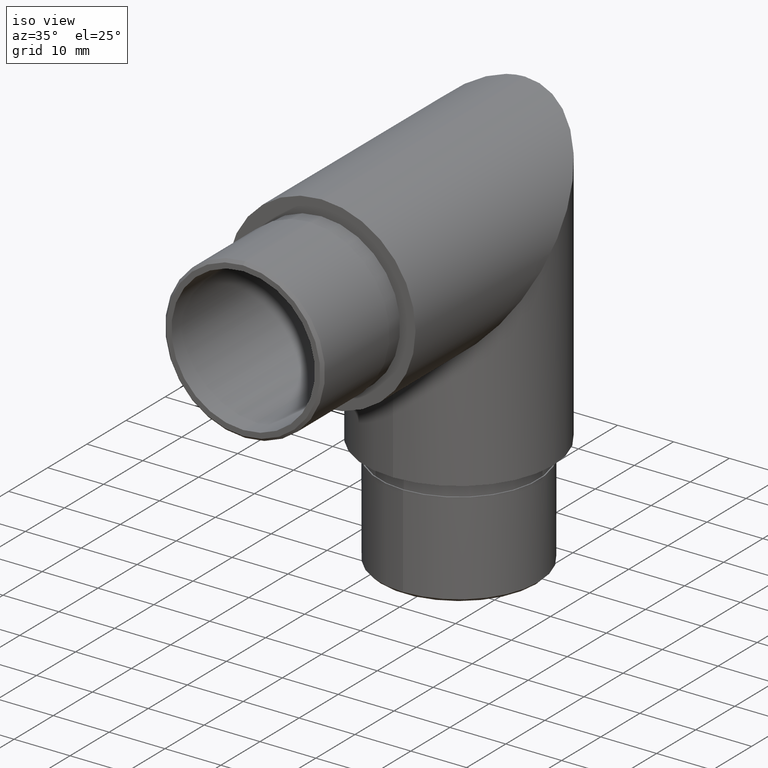
[diagram: clean part render]
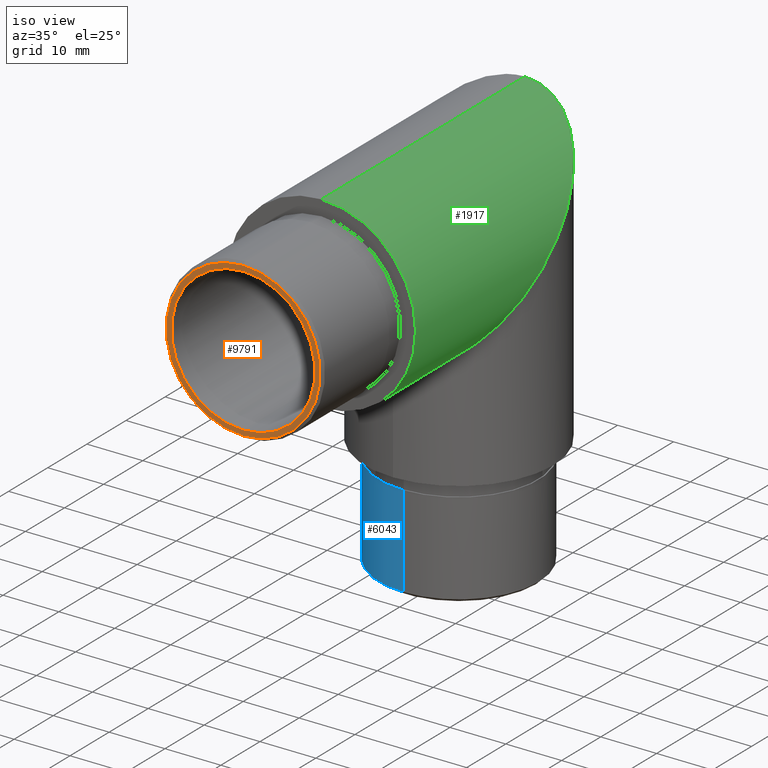
[diagram: same view with three faces highlighted in distinct colors, each labeled with its STEP entity id]
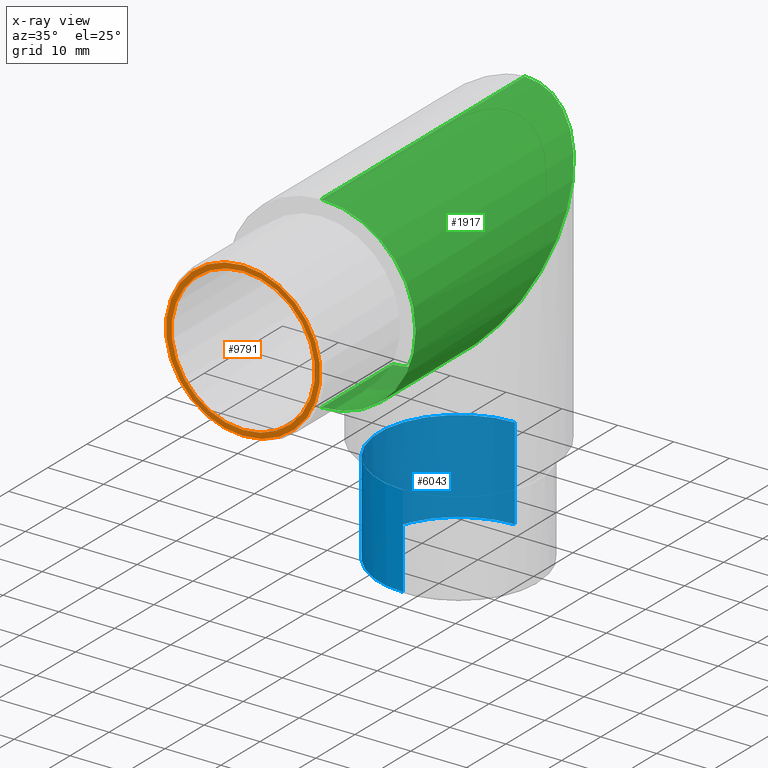
[diagram: x-ray of the same camera — body ghosted, the three highlighted faces saturated]
A machine part, iso view with three faces highlighted in distinct colors.
The next image is the same camera in x-ray (body ghosted, the three faces saturated) — at least one of them is partly hidden behind the body in this view.
Their STEP definitions:

[orange] entity #9791 — the highlighted planar face has unit normal (0, -1, 0).
#79 = DIRECTION ( 'NONE',  ( 0.000000000000000000, -1.000000000000000000, 0.000000000000000000 ) ) ;
#101 = EDGE_LOOP ( 'NONE', ( #3277, #6915 ) ) ;
#411 = CARTESIAN_POINT ( 'NONE',  ( 1.573671136904348863E-15, -20.00000000000000000, 12.84999999999999964 ) ) ;
#648 = AXIS2_PLACEMENT_3D ( 'NONE', #7117, #10134, #1250 ) ;
#1250 = DIRECTION ( 'NONE',  ( 0.000000000000000000, 0.000000000000000000, -1.000000000000000000 ) ) ;
#1357 = EDGE_CURVE ( 'NONE', #4787, #11653, #10066, .T. ) ;
#1812 = FACE_OUTER_BOUND ( 'NONE', #101, .T. ) ;
#2077 = CARTESIAN_POINT ( 'NONE',  ( 0.000000000000000000, -20.00000000000000000, 0.000000000000000000 ) ) ;
#2520 = DIRECTION ( 'NONE',  ( 0.000000000000000000, -1.000000000000000000, 0.000000000000000000 ) ) ;
#3277 = ORIENTED_EDGE ( 'NONE', *, *, #9010, .T. ) ;
#3681 = DIRECTION ( 'NONE',  ( 0.000000000000000000, -1.000000000000000000, 0.000000000000000000 ) ) ;
#3809 = DIRECTION ( 'NONE',  ( 0.000000000000000000, 0.000000000000000000, -1.000000000000000000 ) ) ;
#3971 = AXIS2_PLACEMENT_3D ( 'NONE', #9697, #9773, #3809 ) ;
#4787 = VERTEX_POINT ( 'NONE', #11420 ) ;
#6366 = VERTEX_POINT ( 'NONE', #11032 ) ;
#6644 = DIRECTION ( 'NONE',  ( 0.000000000000000000, 0.000000000000000000, -1.000000000000000000 ) ) ;
#6735 = EDGE_CURVE ( 'NONE', #10302, #6366, #9640, .T. ) ;
#6876 = AXIS2_PLACEMENT_3D ( 'NONE', #8368, #2520, #10278 ) ;
#6915 = ORIENTED_EDGE ( 'NONE', *, *, #1357, .T. ) ;
#6933 = PLANE ( 'NONE',  #11029 ) ;
#7117 = CARTESIAN_POINT ( 'NONE',  ( 0.000000000000000000, -20.00000000000000000, 0.000000000000000000 ) ) ;
#7750 = CIRCLE ( 'NONE', #10623, 12.84999999999999964 ) ;
#7872 = CARTESIAN_POINT ( 'NONE',  ( 0.000000000000000000, -20.00000000000000000, 13.79999999999999361 ) ) ;
#8368 = CARTESIAN_POINT ( 'NONE',  ( 0.000000000000000000, -20.00000000000000000, 0.000000000000000000 ) ) ;
#9010 = EDGE_CURVE ( 'NONE', #11653, #4787, #10985, .T. ) ;
#9640 = CIRCLE ( 'NONE', #6876, 12.84999999999999964 ) ;
#9697 = CARTESIAN_POINT ( 'NONE',  ( 0.000000000000000000, -20.00000000000000000, 0.000000000000000000 ) ) ;
#9746 = FACE_BOUND ( 'NONE', #9996, .T. ) ;
#9773 = DIRECTION ( 'NONE',  ( 0.000000000000000000, -1.000000000000000000, 0.000000000000000000 ) ) ;
#9791 = ADVANCED_FACE ( 'NONE', ( #1812, #9746 ), #6933, .T. ) ;
#9996 = EDGE_LOOP ( 'NONE', ( #10569, #11302 ) ) ;
#10066 = CIRCLE ( 'NONE', #3971, 13.79999999999999361 ) ;
#10134 = DIRECTION ( 'NONE',  ( 0.000000000000000000, -1.000000000000000000, 0.000000000000000000 ) ) ;
#10278 = DIRECTION ( 'NONE',  ( 0.000000000000000000, 0.000000000000000000, -1.000000000000000000 ) ) ;
#10302 = VERTEX_POINT ( 'NONE', #411 ) ;
#10569 = ORIENTED_EDGE ( 'NONE', *, *, #10805, .F. ) ;
#10623 = AXIS2_PLACEMENT_3D ( 'NONE', #12571, #3681, #6644 ) ;
#10805 = EDGE_CURVE ( 'NONE', #6366, #10302, #7750, .T. ) ;
#10985 = CIRCLE ( 'NONE', #648, 13.79999999999999361 ) ;
#11029 = AXIS2_PLACEMENT_3D ( 'NONE', #2077, #79, #11924 ) ;
#11032 = CARTESIAN_POINT ( 'NONE',  ( 0.000000000000000000, -20.00000000000000000, -12.84999999999999964 ) ) ;
#11302 = ORIENTED_EDGE ( 'NONE', *, *, #6735, .F. ) ;
#11420 = CARTESIAN_POINT ( 'NONE',  ( 1.720628752802030725E-15, -20.00000000000000000, -13.79999999999999361 ) ) ;
#11653 = VERTEX_POINT ( 'NONE', #7872 ) ;
#11924 = DIRECTION ( 'NONE',  ( 0.000000000000000000, -0.000000000000000000, -1.000000000000000000 ) ) ;
#12571 = CARTESIAN_POINT ( 'NONE',  ( 0.000000000000000000, -20.00000000000000000, 0.000000000000000000 ) ) ;

[blue] entity #6043 — the highlighted cylindrical surface (partial cylindrical patch) has radius 14.3 mm, axis along (-0, 0, 1).
#856 = ORIENTED_EDGE ( 'NONE', *, *, #5033, .T. ) ;
#880 = CIRCLE ( 'NONE', #5290, 14.30000000000000071 ) ;
#947 = EDGE_CURVE ( 'NONE', #10216, #11360, #9022, .T. ) ;
#1316 = LINE ( 'NONE', #10723, #9736 ) ;
#1544 = FACE_OUTER_BOUND ( 'NONE', #8375, .T. ) ;
#1769 = VERTEX_POINT ( 'NONE', #11485 ) ;
#1863 = CIRCLE ( 'NONE', #5042, 14.30000000000000071 ) ;
#1871 = CARTESIAN_POINT ( 'NONE',  ( 1.751244922780715104E-15, 49.44999999999981810, -54.64999999999999147 ) ) ;
#2162 = DIRECTION ( 'NONE',  ( -0.000000000000000000, 3.386180225106727843E-15, 1.000000000000000000 ) ) ;
#2923 = CARTESIAN_POINT ( 'NONE',  ( 1.751244922780718653E-15, 49.44999999999987494, -38.15000000000005542 ) ) ;
#2979 = AXIS2_PLACEMENT_3D ( 'NONE', #5474, #3606, #11464 ) ;
#3295 = DIRECTION ( 'NONE',  ( 0.000000000000000000, 0.000000000000000000, 1.000000000000000000 ) ) ;
#3606 = DIRECTION ( 'NONE',  ( 0.000000000000000000, -3.386180225106727448E-15, -1.000000000000000000 ) ) ;
#4750 = CYLINDRICAL_SURFACE ( 'NONE', #8356, 14.30000000000000071 ) ;
#4812 = DIRECTION ( 'NONE',  ( -1.000000000000000000, 9.704746718751368843E-16, 0.000000000000000000 ) ) ;
#5033 = EDGE_CURVE ( 'NONE', #1769, #10216, #8445, .T. ) ;
#5042 = AXIS2_PLACEMENT_3D ( 'NONE', #6639, #8550, #4812 ) ;
#5254 = VERTEX_POINT ( 'NONE', #7374 ) ;
#5290 = AXIS2_PLACEMENT_3D ( 'NONE', #6248, #3295, #12034 ) ;
#5474 = CARTESIAN_POINT ( 'NONE',  ( 0.000000000000000000, 35.14999999999987779, -38.15000000000000568 ) ) ;
#5807 = EDGE_CURVE ( 'NONE', #10088, #5254, #1863, .T. ) ;
#6043 = ADVANCED_FACE ( 'NONE', ( #1544 ), #4750, .T. ) ;
#6084 = ORIENTED_EDGE ( 'NONE', *, *, #10904, .F. ) ;
#6183 = ORIENTED_EDGE ( 'NONE', *, *, #5807, .T. ) ;
#6248 = CARTESIAN_POINT ( 'NONE',  ( 0.000000000000000000, 35.14999999999982094, -54.64999999999999147 ) ) ;
#6639 = CARTESIAN_POINT ( 'NONE',  ( 0.000000000000000000, 35.14999999999982094, -54.64999999999999147 ) ) ;
#6785 = ORIENTED_EDGE ( 'NONE', *, *, #947, .T. ) ;
#6890 = DIRECTION ( 'NONE',  ( -0.000000000000000000, 3.386180225106727843E-15, 1.000000000000000000 ) ) ;
#7374 = CARTESIAN_POINT ( 'NONE',  ( -14.30000000000000071, 35.14999999999982094, -54.64999999999999147 ) ) ;
#7391 = DIRECTION ( 'NONE',  ( -0.000000000000000000, 3.386180225106727843E-15, 1.000000000000000000 ) ) ;
#8319 = ORIENTED_EDGE ( 'NONE', *, *, #11691, .T. ) ;
#8356 = AXIS2_PLACEMENT_3D ( 'NONE', #11877, #2162, #9040 ) ;
#8375 = EDGE_LOOP ( 'NONE', ( #6084, #6183, #8319, #856, #6785 ) ) ;
#8445 = LINE ( 'NONE', #9405, #12125 ) ;
#8550 = DIRECTION ( 'NONE',  ( 0.000000000000000000, 0.000000000000000000, 1.000000000000000000 ) ) ;
#9022 = CIRCLE ( 'NONE', #2979, 14.30000000000000071 ) ;
#9040 = DIRECTION ( 'NONE',  ( 0.000000000000000000, -1.000000000000000000, 3.396661351562978799E-15 ) ) ;
#9405 = CARTESIAN_POINT ( 'NONE',  ( 0.000000000000000000, 20.84999999999982023, -55.14999999999995595 ) ) ;
#9682 = CARTESIAN_POINT ( 'NONE',  ( 0.000000000000000000, 20.84999999999987708, -38.14999999999995595 ) ) ;
#9736 = VECTOR ( 'NONE', #6890, 1000.000000000000000 ) ;
#10088 = VERTEX_POINT ( 'NONE', #1871 ) ;
#10216 = VERTEX_POINT ( 'NONE', #9682 ) ;
#10723 = CARTESIAN_POINT ( 'NONE',  ( 1.751244922780715104E-15, 49.44999999999981810, -55.15000000000005542 ) ) ;
#10904 = EDGE_CURVE ( 'NONE', #10088, #11360, #1316, .T. ) ;
#11360 = VERTEX_POINT ( 'NONE', #2923 ) ;
#11464 = DIRECTION ( 'NONE',  ( 0.000000000000000000, 1.000000000000000000, -3.396661351562978799E-15 ) ) ;
#11485 = CARTESIAN_POINT ( 'NONE',  ( 0.000000000000000000, 20.84999999999982023, -54.64999999999999147 ) ) ;
#11691 = EDGE_CURVE ( 'NONE', #5254, #1769, #880, .T. ) ;
#11877 = CARTESIAN_POINT ( 'NONE',  ( 0.000000000000000000, 35.14999999999982094, -55.15000000000000568 ) ) ;
#12034 = DIRECTION ( 'NONE',  ( -1.000000000000000000, 0.000000000000000000, 0.000000000000000000 ) ) ;
#12125 = VECTOR ( 'NONE', #7391, 1000.000000000000000 ) ;

[green] entity #1917 — the highlighted cylindrical surface (partial cylindrical patch) has radius 16.85 mm, axis along (-0, -1, -0).
#654 = DIRECTION ( 'NONE',  ( -0.000000000000000000, -1.000000000000000000, -0.000000000000000000 ) ) ;
#756 = LINE ( 'NONE', #10466, #5154 ) ;
#1709 = CARTESIAN_POINT ( 'NONE',  ( 2.063529856563290244E-15, 18.29999999999995097, -16.85000000000000142 ) ) ;
#1917 = ADVANCED_FACE ( 'NONE', ( #5962 ), #3970, .T. ) ;
#2171 = DIRECTION ( 'NONE',  ( -0.000000000000000000, -1.000000000000000000, -0.000000000000000000 ) ) ;
#2615 = VERTEX_POINT ( 'NONE', #11699 ) ;
#2722 = ORIENTED_EDGE ( 'NONE', *, *, #8582, .F. ) ;
#2757 = CARTESIAN_POINT ( 'NONE',  ( 0.000000000000000000, 0.000000000000000000, 0.000000000000000000 ) ) ;
#2937 = CARTESIAN_POINT ( 'NONE',  ( 0.000000000000000000, 82.80899705197330718, 0.000000000000000000 ) ) ;
#3169 = LINE ( 'NONE', #12646, #6851 ) ;
#3176 = EDGE_CURVE ( 'NONE', #5932, #8156, #756, .T. ) ;
#3649 = DIRECTION ( 'NONE',  ( 0.000000000000000000, 1.000000000000000000, 0.000000000000000000 ) ) ;
#3669 = CARTESIAN_POINT ( 'NONE',  ( 33.69999999999999574, 18.29999999999995097, -16.85000000000000142 ) ) ;
#3673 = EDGE_CURVE ( 'NONE', #7961, #2615, #3169, .T. ) ;
#3970 = CYLINDRICAL_SURFACE ( 'NONE', #8948, 16.85000000000000142 ) ;
#4201 = DIRECTION ( 'NONE',  ( -0.000000000000000000, -1.000000000000000000, -0.000000000000000000 ) ) ;
#4607 = EDGE_LOOP ( 'NONE', ( #2722, #6513, #8724, #4987 ) ) ;
#4646 = CARTESIAN_POINT ( 'NONE',  ( 0.000000000000000000, 52.00000000000005684, 16.84999999999999787 ) ) ;
#4987 = ORIENTED_EDGE ( 'NONE', *, *, #3673, .F. ) ;
#5154 = VECTOR ( 'NONE', #654, 1000.000000000000000 ) ;
#5932 = VERTEX_POINT ( 'NONE', #6672 ) ;
#5962 = FACE_OUTER_BOUND ( 'NONE', #4607, .T. ) ;
#6176 = DIRECTION ( 'NONE',  ( 0.000000000000000000, 0.000000000000000000, -1.000000000000000000 ) ) ;
#6513 = ORIENTED_EDGE ( 'NONE', *, *, #3176, .T. ) ;
#6672 = CARTESIAN_POINT ( 'NONE',  ( 0.000000000000000000, 52.00000000000005684, 16.84999999999999787 ) ) ;
#6851 = VECTOR ( 'NONE', #2171, 1000.000000000000000 ) ;
#7531 = AXIS2_PLACEMENT_3D ( 'NONE', #2757, #3649, #10486 ) ;
#7961 = VERTEX_POINT ( 'NONE', #9835 ) ;
#8156 = VERTEX_POINT ( 'NONE', #11395 ) ;
#8582 = EDGE_CURVE ( 'NONE', #5932, #7961, #12650, .T. ) ;
#8724 = ORIENTED_EDGE ( 'NONE', *, *, #10452, .T. ) ;
#8948 = AXIS2_PLACEMENT_3D ( 'NONE', #2937, #4201, #6176 ) ;
#9533 = CARTESIAN_POINT ( 'NONE',  ( 33.69999999999999574, 52.00000000000006395, 16.85000000000000497 ) ) ;
#9835 = CARTESIAN_POINT ( 'NONE',  ( 2.063529856563290244E-15, 18.29999999999995097, -16.85000000000000142 ) ) ;
#10452 = EDGE_CURVE ( 'NONE', #8156, #2615, #12496, .T. ) ;
#10466 = CARTESIAN_POINT ( 'NONE',  ( 2.063529856563290244E-15, 82.80899705197330718, 16.85000000000000142 ) ) ;
#10486 = DIRECTION ( 'NONE',  ( 0.000000000000000000, 0.000000000000000000, 1.000000000000000000 ) ) ;
#11395 = CARTESIAN_POINT ( 'NONE',  ( 2.063529856563290244E-15, 0.000000000000000000, 16.85000000000000142 ) ) ;
#11699 = CARTESIAN_POINT ( 'NONE',  ( 0.000000000000000000, 0.000000000000000000, -16.85000000000000142 ) ) ;
#12496 = CIRCLE ( 'NONE', #7531, 16.85000000000000142 ) ;
#12646 = CARTESIAN_POINT ( 'NONE',  ( 0.000000000000000000, 82.80899705197330718, -16.85000000000000142 ) ) ;
#12650 =( BOUNDED_CURVE ( )  B_SPLINE_CURVE ( 3, ( #4646, #9533, #3669, #1709 ),
 .UNSPECIFIED., .F., .T. ) 
 B_SPLINE_CURVE_WITH_KNOTS ( ( 4, 4 ),
 ( 3.141592653589793116, 6.283185307179586232 ),
 .UNSPECIFIED. ) 
 CURVE ( )  GEOMETRIC_REPRESENTATION_ITEM ( )  RATIONAL_B_SPLINE_CURVE ( ( 1.000000000000000000, 0.3333333333333333703, 0.3333333333333333703, 1.000000000000000000 ) ) 
 REPRESENTATION_ITEM ( '' )  );